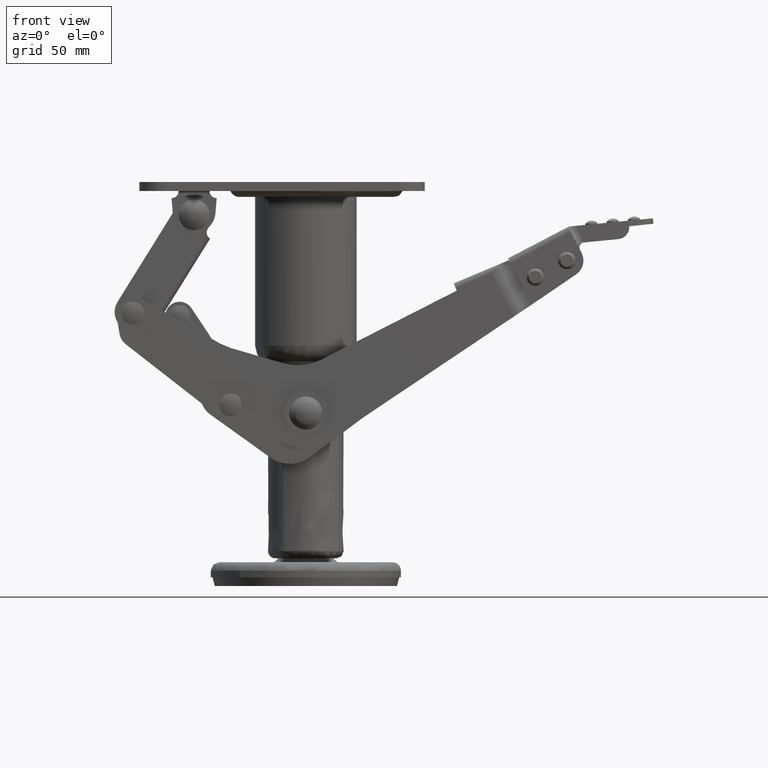
[diagram: clean part render]
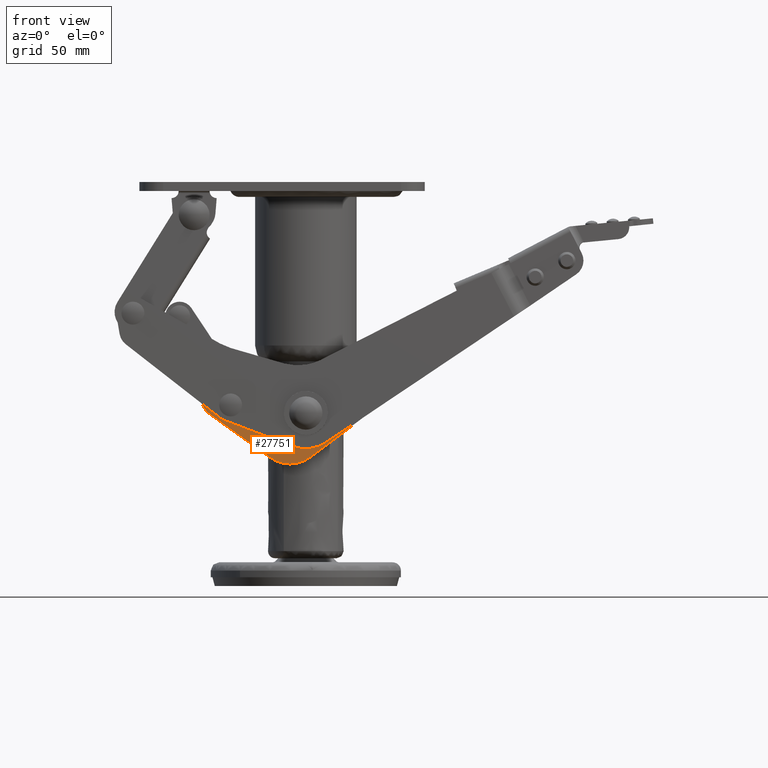
[diagram: same view with one face highlighted and labeled with its STEP entity id]
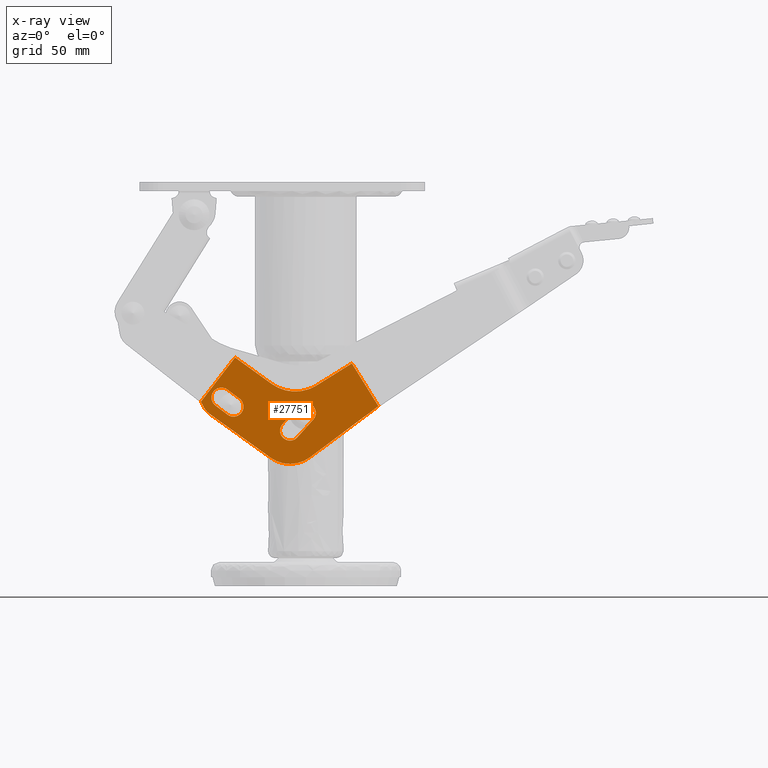
[diagram: x-ray of the same camera — body ghosted, the highlighted face saturated]
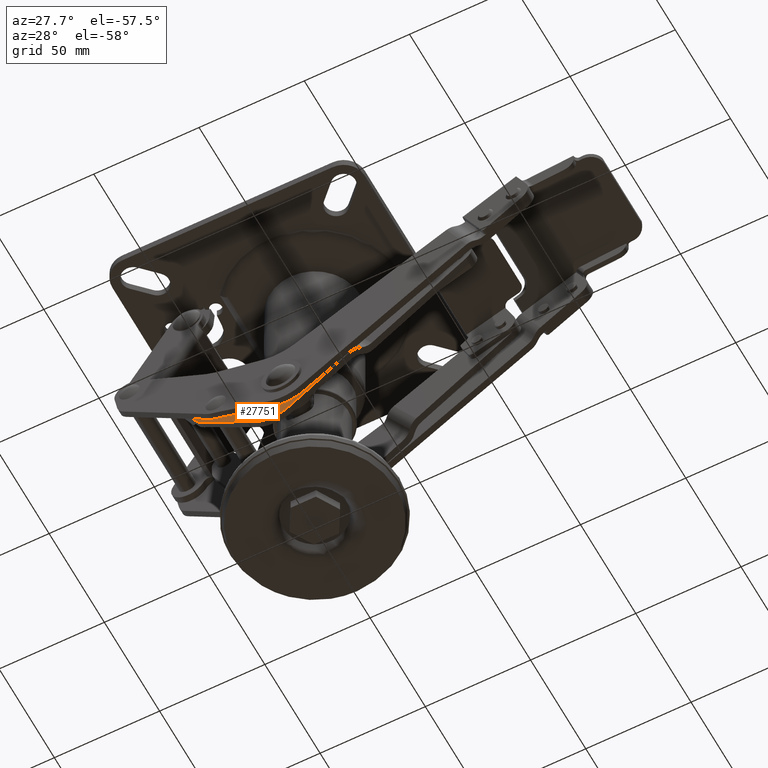
[diagram: same view with one face highlighted and labeled with its STEP entity id]
A machine part, front view. The second image highlights one B-rep face of the part: STEP entity #27751.
The next image is the same camera in x-ray: the body ghosted, the highlighted face saturated — about 0% of this face is hidden behind the body in this view.
A second angle (auxiliary view) of the same face is appended — the face is thin or edge-on in the first view.
In plain terms, the highlighted face is a freeform B-spline surface patch.
Its self-contained STEP definition (entity closure, byte-faithful):
#27105=CARTESIAN_POINT('',(-17.131837931761950,-26.125000000000000,-59.725601300948497));
#27106=VERTEX_POINT('',#27105);
#27132=CARTESIAN_POINT('',(-31.661843170997450,-26.125000000000000,-78.201137062520303));
#27133=VERTEX_POINT('',#27132);
#27147=CARTESIAN_POINT('',(-17.131837931761950,-26.125000000000000,-59.725601300948497));
#27148=CARTESIAN_POINT('',(-31.661843170997450,-26.125000000000000,-78.201137062520303));
#27149=QUASI_UNIFORM_CURVE('',1,(#27147,#27148),.UNSPECIFIED.,.F.,.U.);
#27150=EDGE_CURVE('',#27106,#27133,#27149,.T.);
#27169=CARTESIAN_POINT('',(42.972276981132353,-26.125000000000000,-80.691094217082281));
#27170=VERTEX_POINT('',#27169);
#27181=CARTESIAN_POINT('',(31.978884690049899,-26.125000000000000,-62.657805762113213));
#27182=VERTEX_POINT('',#27181);
#27192=CARTESIAN_POINT('',(42.972276981132353,-26.125000000000000,-80.691094217082281));
#27193=CARTESIAN_POINT('',(31.978884690049899,-26.125000000000000,-62.657805762113213));
#27194=QUASI_UNIFORM_CURVE('',1,(#27192,#27193),.UNSPECIFIED.,.F.,.U.);
#27195=EDGE_CURVE('',#27170,#27182,#27194,.T.);
#27528=CARTESIAN_POINT('',(-35.389816627329211,-26.125000000000000,-106.946315765463890));
#27529=CARTESIAN_POINT('',(46.700253106588242,-26.125000000000000,-106.946315765463890));
#27530=CARTESIAN_POINT('',(-35.389816627329211,-26.125000000000000,-57.479136357955412));
#27531=CARTESIAN_POINT('',(46.700253106588242,-26.125000000000000,-57.479136357955412));
#27532=B_SPLINE_SURFACE_WITH_KNOTS('',1,1,((#27528,#27530),(#27529,#27531)),.UNSPECIFIED.,.F.,.F.,.U.,(2,2),(2,2),(0.0,82.090069733917446),(0.0,49.467179407508482),.UNSPECIFIED.);
#27533=CARTESIAN_POINT('',(-1.837779504895800,-26.125000000000000,-70.966638616200314));
#27534=VERTEX_POINT('',#27533);
#27535=CARTESIAN_POINT('',(-17.131837931761950,-26.125000000000000,-59.725601300948497));
#27536=CARTESIAN_POINT('',(-1.837779504895800,-26.125000000000000,-70.966638616200314));
#27537=QUASI_UNIFORM_CURVE('',1,(#27535,#27536),.UNSPECIFIED.,.F.,.U.);
#27538=EDGE_CURVE('',#27106,#27534,#27537,.T.);
#27539=ORIENTED_EDGE('',*,*,#27538,.F.);
#27540=ORIENTED_EDGE('',*,*,#27150,.T.);
#27541=CARTESIAN_POINT('',(-30.646449673511398,-26.125000000000000,-80.270869471656198));
#27542=VERTEX_POINT('',#27541);
#27543=CARTESIAN_POINT('',(-30.646449673511398,-26.125000000000000,-80.270869471656198));
#27544=CARTESIAN_POINT('',(-31.661843170997450,-26.125000000000000,-78.201137062520303));
#27545=QUASI_UNIFORM_CURVE('',1,(#27543,#27544),.UNSPECIFIED.,.F.,.U.);
#27546=EDGE_CURVE('',#27542,#27133,#27545,.T.);
#27547=ORIENTED_EDGE('',*,*,#27546,.F.);
#27548=CARTESIAN_POINT('',(-28.075046624398851,-26.125000000000000,-83.357114485426692));
#27549=VERTEX_POINT('',#27548);
#27550=CARTESIAN_POINT('',(-30.646449673511398,-26.125000000000000,-80.270869471656198));
#27551=CARTESIAN_POINT('',(-30.404609015781020,-26.125000000000039,-80.763927655130971));
#27552=CARTESIAN_POINT('',(-29.691193203034320,-26.124999999999940,-81.919664328906151));
#27553=CARTESIAN_POINT('',(-28.720223187964109,-26.125000000000082,-82.879573292074269));
#27554=CARTESIAN_POINT('',(-28.075046624398851,-26.125000000000000,-83.357114485426692));
#27555=B_SPLINE_CURVE_WITH_KNOTS('',3,(#27550,#27551,#27552,#27553,#27554),.UNSPECIFIED.,.F.,.U.,(4,1,4),(0.000000031058227,1.647544864392386,4.055484757206007),.UNSPECIFIED.);
#27556=EDGE_CURVE('',#27542,#27549,#27555,.T.);
#27557=ORIENTED_EDGE('',*,*,#27556,.T.);
#27558=CARTESIAN_POINT('',(-2.619445165892785,-26.125000000000000,-101.959959902777000));
#27559=VERTEX_POINT('',#27558);
#27560=CARTESIAN_POINT('',(-2.619445165892785,-26.125000000000000,-101.959959902777000));
#27561=CARTESIAN_POINT('',(-28.075046624398851,-26.125000000000000,-83.357114485426692));
#27562=QUASI_UNIFORM_CURVE('',1,(#27560,#27561),.UNSPECIFIED.,.F.,.U.);
#27563=EDGE_CURVE('',#27559,#27549,#27562,.T.);
#27564=ORIENTED_EDGE('',*,*,#27563,.F.);
#27565=CARTESIAN_POINT('',(14.002305778765701,-26.125000000000000,-101.972603225723800));
#27566=VERTEX_POINT('',#27565);
#27567=CARTESIAN_POINT('',(-2.619445165892785,-26.125000000000000,-101.959959902777000));
#27568=CARTESIAN_POINT('',(-1.725037934273733,-26.124999999999972,-102.621170150175800));
#27569=CARTESIAN_POINT('',(-0.304896219967834,-26.125000000000021,-103.428359290018190));
#27570=CARTESIAN_POINT('',(2.055090896325234,-26.125000000000028,-104.272158285173900));
#27571=CARTESIAN_POINT('',(4.567100449679437,-26.125000000000060,-104.767025264998100));
#27572=CARTESIAN_POINT('',(7.461706745471384,-26.125000000000011,-104.697340131048800));
#27573=CARTESIAN_POINT('',(10.808187263874521,-26.125000000000121,-103.886804609432200));
#27574=CARTESIAN_POINT('',(12.845917547314130,-26.124999999999869,-102.825296387418110));
#27575=CARTESIAN_POINT('',(14.002305778765701,-26.125000000000000,-101.972603225723800));
#27576=B_SPLINE_CURVE_WITH_KNOTS('',3,(#27567,#27568,#27569,#27570,#27571,#27572,#27573,#27574,#27575),.UNSPECIFIED.,.F.,.U.,(4,1,1,1,1,1,4),(0.000000152516137,3.336735384362889,4.866089369556548,7.507677963669355,10.983436840971651,13.486001231840490,17.795957453342218),.UNSPECIFIED.);
#27577=EDGE_CURVE('',#27559,#27566,#27576,.T.);
#27578=ORIENTED_EDGE('',*,*,#27577,.T.);
#27579=CARTESIAN_POINT('',(42.972276981132353,-26.125000000000000,-80.691094217082281));
#27580=CARTESIAN_POINT('',(14.002305778765701,-26.125000000000000,-101.972603225723800));
#27581=QUASI_UNIFORM_CURVE('',1,(#27579,#27580),.UNSPECIFIED.,.F.,.U.);
#27582=EDGE_CURVE('',#27170,#27566,#27581,.T.);
#27583=ORIENTED_EDGE('',*,*,#27582,.F.);
#27584=ORIENTED_EDGE('',*,*,#27195,.T.);
#27585=CARTESIAN_POINT('',(17.131699892813650,-26.125000000000000,-71.722971272339109));
#27586=VERTEX_POINT('',#27585);
#27587=CARTESIAN_POINT('',(17.131699892813650,-26.125000000000000,-71.722971272339109));
#27588=CARTESIAN_POINT('',(31.978884690049899,-26.125000000000000,-62.657805762113213));
#27589=QUASI_UNIFORM_CURVE('',1,(#27587,#27588),.UNSPECIFIED.,.F.,.U.);
#27590=EDGE_CURVE('',#27586,#27182,#27589,.T.);
#27591=ORIENTED_EDGE('',*,*,#27590,.F.);
#27592=CARTESIAN_POINT('',(-1.837779504895800,-26.125000000000000,-70.966638616200314));
#27593=CARTESIAN_POINT('',(-0.399569771496646,-26.124999999999989,-72.021461248155063));
#27594=CARTESIAN_POINT('',(2.245855174969840,-26.125000000000050,-73.379711201721108));
#27595=CARTESIAN_POINT('',(6.469274067610147,-26.124999999999869,-74.305187694865538));
#27596=CARTESIAN_POINT('',(10.220470315837749,-26.125000000000291,-74.281186999215009));
#27597=CARTESIAN_POINT('',(13.915692396493190,-26.124999999999620,-73.403068446776544));
#27598=CARTESIAN_POINT('',(16.104896242395121,-26.125000000000391,-72.356366105237015));
#27599=CARTESIAN_POINT('',(17.131699892813650,-26.125000000000000,-71.722971272339109));
#27600=B_SPLINE_CURVE_WITH_KNOTS('',3,(#27592,#27593,#27594,#27595,#27596,#27597,#27598,#27599),.UNSPECIFIED.,.F.,.U.,(4,1,1,1,1,4),(0.000000122651972,5.350305086791428,8.812268707300834,12.903662442320680,16.522989749895618,20.142306307615069),.UNSPECIFIED.);
#27601=EDGE_CURVE('',#27534,#27586,#27600,.T.);
#27602=ORIENTED_EDGE('',*,*,#27601,.F.);
#27603=EDGE_LOOP('',(#27539,#27540,#27547,#27557,#27564,#27578,#27583,#27584,#27591,#27602));
#27604=FACE_OUTER_BOUND('',#27603,.T.);
#27605=CARTESIAN_POINT('',(8.585453824577691,-26.125000000000000,-93.751904258547896));
#27606=VERTEX_POINT('',#27605);
#27607=CARTESIAN_POINT('',(15.741047316271899,-26.125000000000000,-85.895199520258515));
#27608=VERTEX_POINT('',#27607);
#27609=CARTESIAN_POINT('',(8.585453824577691,-26.125000000000000,-93.751904258547896));
#27610=CARTESIAN_POINT('',(11.161916594990361,-26.125000000000050,-91.316115827754402));
#27611=CARTESIAN_POINT('',(13.556012683849961,-26.124999999999929,-88.687485730103518));
#27612=CARTESIAN_POINT('',(15.741047316271899,-26.125000000000000,-85.895199520258515));
#27613=B_SPLINE_CURVE_WITH_KNOTS('',3,(#27609,#27610,#27611,#27612),.UNSPECIFIED.,.F.,.U.,(4,4),(1.001556E-009,10.636766463873560),.UNSPECIFIED.);
#27614=EDGE_CURVE('',#27606,#27608,#27613,.T.);
#27615=ORIENTED_EDGE('',*,*,#27614,.F.);
#27616=CARTESIAN_POINT('',(2.648095937510592,-26.125000000000000,-93.585454378063474));
#27617=VERTEX_POINT('',#27616);
#27618=CARTESIAN_POINT('',(2.648095937510592,-26.125000000000000,-93.585454378063474));
#27619=CARTESIAN_POINT('',(2.884113145931747,-26.124999999999979,-93.835181361459917));
#27620=CARTESIAN_POINT('',(3.444546526350676,-26.125000000000039,-94.298360444772172));
#27621=CARTESIAN_POINT('',(4.357333767939385,-26.124999999999979,-94.720259328599724));
#27622=CARTESIAN_POINT('',(5.372557705792083,-26.125000000000060,-94.925878748786900));
#27623=CARTESIAN_POINT('',(6.342899723596227,-26.124999999999851,-94.893559919668178));
#27624=CARTESIAN_POINT('',(7.506209690352276,-26.125000000000089,-94.560554101430796));
#27625=CARTESIAN_POINT('',(8.211194687390869,-26.124999999999901,-94.106410277827379));
#27626=CARTESIAN_POINT('',(8.585453824577691,-26.125000000000000,-93.751904258547896));
#27627=B_SPLINE_CURVE_WITH_KNOTS('',3,(#27618,#27619,#27620,#27621,#27622,#27623,#27624,#27625,#27626),.UNSPECIFIED.,.F.,.U.,(4,1,1,1,1,1,4),(0.000000365194075,1.030854940881170,2.164812603310683,2.989568905935572,4.123392515231099,5.051217076369917,6.597504022028091),.UNSPECIFIED.);
#27628=EDGE_CURVE('',#27617,#27606,#27627,.T.);
#27629=ORIENTED_EDGE('',*,*,#27628,.F.);
#27630=CARTESIAN_POINT('',(2.814545763196355,-26.125000000000000,-87.648090466320511));
#27631=VERTEX_POINT('',#27630);
#27632=CARTESIAN_POINT('',(2.814545763196355,-26.125000000000000,-87.648090466320511));
#27633=CARTESIAN_POINT('',(2.439668392063320,-26.124999999999950,-88.001922504151352));
#27634=CARTESIAN_POINT('',(1.946627165732229,-26.125000000000028,-88.680311565442096));
#27635=CARTESIAN_POINT('',(1.571869758573848,-26.125000000000011,-89.757882222993302));
#27636=CARTESIAN_POINT('',(1.453836263819102,-26.124999999999989,-90.788299288318683));
#27637=CARTESIAN_POINT('',(1.598136934398657,-26.125000000000089,-91.785178618382716));
#27638=CARTESIAN_POINT('',(2.004444831518788,-26.124999999999950,-92.775464083509945));
#27639=CARTESIAN_POINT('',(2.388323481223274,-26.124999999999901,-93.310881724805142));
#27640=CARTESIAN_POINT('',(2.648095937510592,-26.125000000000000,-93.585454378063474));
#27641=B_SPLINE_CURVE_WITH_KNOTS('',3,(#27632,#27633,#27634,#27635,#27636,#27637,#27638,#27639,#27640),.UNSPECIFIED.,.F.,.U.,(4,1,1,1,1,1,4),(0.000000359355626,1.546290904034417,2.474112093191188,3.401791797001450,4.638855330463147,5.463564452733367,6.597508821151231),.UNSPECIFIED.);
#27642=EDGE_CURVE('',#27631,#27617,#27641,.T.);
#27643=ORIENTED_EDGE('',*,*,#27642,.F.);
#27644=CARTESIAN_POINT('',(9.125932614071470,-26.125000000000000,-80.718306255292106));
#27645=VERTEX_POINT('',#27644);
#27646=CARTESIAN_POINT('',(2.814545763196355,-26.125000000000000,-87.648090466320511));
#27647=CARTESIAN_POINT('',(5.087034131098766,-26.124999999999879,-85.499666223906402));
#27648=CARTESIAN_POINT('',(7.198691167129041,-26.125000000000249,-83.181167908660044));
#27649=CARTESIAN_POINT('',(9.125932614071470,-26.125000000000000,-80.718306255292106));
#27650=B_SPLINE_CURVE_WITH_KNOTS('',3,(#27646,#27647,#27648,#27649),.UNSPECIFIED.,.F.,.U.,(4,4),(8.810819E-010,9.381857654421843),.UNSPECIFIED.);
#27651=EDGE_CURVE('',#27631,#27645,#27650,.T.);
#27652=ORIENTED_EDGE('',*,*,#27651,.T.);
#27653=CARTESIAN_POINT('',(15.021940403985351,-26.125000000000000,-79.999190723764684));
#27654=VERTEX_POINT('',#27653);
#27655=CARTESIAN_POINT('',(15.021940403985351,-26.125000000000000,-79.999190723764684));
#27656=CARTESIAN_POINT('',(14.616251126366350,-26.125000000000028,-79.681158801932995));
#27657=CARTESIAN_POINT('',(13.872038695969540,-26.124999999999961,-79.294555445262290));
#27658=CARTESIAN_POINT('',(12.818612542653620,-26.125000000000028,-79.097131572063049));
#27659=CARTESIAN_POINT('',(11.956478024754860,-26.125000000000011,-79.106552953357181));
#27660=CARTESIAN_POINT('',(11.110706876643130,-26.125000000000011,-79.284359754508287));
#27661=CARTESIAN_POINT('',(10.072792006456950,-26.125000000000071,-79.757993003204518));
#27662=CARTESIAN_POINT('',(9.443259936753726,-26.125000000000011,-80.312054751558833));
#27663=CARTESIAN_POINT('',(9.125932614071470,-26.125000000000000,-80.718306255292106));
#27664=B_SPLINE_CURVE_WITH_KNOTS('',3,(#27655,#27656,#27657,#27658,#27659,#27660,#27661,#27662,#27663),.UNSPECIFIED.,.F.,.U.,(4,1,1,1,1,1,4),(0.000000357944542,1.546291655400708,2.474113295714363,3.195716913673510,4.123397522998621,5.051223210656191,6.597512031574943),.UNSPECIFIED.);
#27665=EDGE_CURVE('',#27654,#27645,#27664,.T.);
#27666=ORIENTED_EDGE('',*,*,#27665,.F.);
#27667=CARTESIAN_POINT('',(15.741047316271899,-26.125000000000000,-85.895199520258515));
#27668=CARTESIAN_POINT('',(16.101787972186749,-26.124999999999972,-85.435561859564430));
#27669=CARTESIAN_POINT('',(16.502062877947669,-26.125000000000011,-84.615212381101671));
#27670=CARTESIAN_POINT('',(16.656911550813639,-26.124999999999961,-83.484901969158045));
#27671=CARTESIAN_POINT('',(16.599149323443001,-26.125000000000028,-82.520939704851131));
#27672=CARTESIAN_POINT('',(16.328150971903931,-26.124999999999989,-81.623147959664792));
#27673=CARTESIAN_POINT('',(15.778980689665540,-26.125000000000021,-80.704358293333584));
#27674=CARTESIAN_POINT('',(15.319685441854940,-26.124999999999961,-80.232041640398251));
#27675=CARTESIAN_POINT('',(15.021940403985351,-26.125000000000000,-79.999190723764684));
#27676=B_SPLINE_CURVE_WITH_KNOTS('',3,(#27667,#27668,#27669,#27670,#27671,#27672,#27673,#27674,#27675),.UNSPECIFIED.,.F.,.U.,(4,1,1,1,1,1,4),(0.000000357986180,1.752469371229332,2.680246206519191,3.401793432202648,4.638857563413573,5.463567081092254,6.597511996228798),.UNSPECIFIED.);
#27677=EDGE_CURVE('',#27608,#27654,#27676,.T.);
#27678=ORIENTED_EDGE('',*,*,#27677,.F.);
#27679=EDGE_LOOP('',(#27615,#27629,#27643,#27652,#27666,#27678));
#27680=FACE_BOUND('',#27679,.T.);
#27681=CARTESIAN_POINT('',(-15.410599355027150,-26.125000000000000,-77.073036297810802));
#27682=VERTEX_POINT('',#27681);
#27683=CARTESIAN_POINT('',(-20.448295711919950,-26.125000000000000,-73.202882471215204));
#27684=VERTEX_POINT('',#27683);
#27685=CARTESIAN_POINT('',(-15.410599355027150,-26.125000000000000,-77.073036297810802));
#27686=CARTESIAN_POINT('',(-20.448295711919950,-26.125000000000000,-73.202882471215204));
#27687=QUASI_UNIFORM_CURVE('',1,(#27685,#27686),.UNSPECIFIED.,.F.,.U.);
#27688=EDGE_CURVE('',#27682,#27684,#27687,.T.);
#27689=ORIENTED_EDGE('',*,*,#27688,.F.);
#27690=CARTESIAN_POINT('',(-14.638685442869550,-26.125000000000000,-82.962381636445699));
#27691=VERTEX_POINT('',#27690);
#27692=CARTESIAN_POINT('',(-14.638685442869550,-26.125000000000000,-82.962381636445699));
#27693=CARTESIAN_POINT('',(-14.324348487912861,-26.125000000000011,-82.553846339574676));
#27694=CARTESIAN_POINT('',(-13.864967244225859,-26.124999999999972,-81.650469950714367));
#27695=CARTESIAN_POINT('',(-13.712849588623710,-26.125000000000000,-80.334190627863180));
#27696=CARTESIAN_POINT('',(-13.919931629084880,-26.125000000000050,-79.106830424010994));
#27697=CARTESIAN_POINT('',(-14.435608704879410,-26.124999999999911,-78.003442718680660));
#27698=CARTESIAN_POINT('',(-15.056221458123790,-26.125000000000000,-77.345005480048513));
#27699=CARTESIAN_POINT('',(-15.410599355027150,-26.125000000000000,-77.073036297810802));
#27700=B_SPLINE_CURVE_WITH_KNOTS('',3,(#27692,#27693,#27694,#27695,#27696,#27697,#27698,#27699),.UNSPECIFIED.,.F.,.U.,(4,1,1,1,1,4),(0.000000355840101,1.546295977531725,2.989580886942381,3.917269333180921,5.257425357485765,6.597530479520268),.UNSPECIFIED.);
#27701=EDGE_CURVE('',#27691,#27682,#27700,.T.);
#27702=ORIENTED_EDGE('',*,*,#27701,.F.);
#27703=CARTESIAN_POINT('',(-20.528032430777451,-26.125000000000000,-83.734282624094007));
#27704=VERTEX_POINT('',#27703);
#27705=CARTESIAN_POINT('',(-20.528032430777451,-26.125000000000000,-83.734282624094007));
#27706=CARTESIAN_POINT('',(-20.201143941964251,-26.125000000000028,-83.985617877527062));
#27707=CARTESIAN_POINT('',(-19.472563456461831,-26.125000000000000,-84.390795998541236));
#27708=CARTESIAN_POINT('',(-18.352321494011580,-26.124999999999989,-84.633505434180805));
#27709=CARTESIAN_POINT('',(-17.385261769091120,-26.125000000000060,-84.590325449289764));
#27710=CARTESIAN_POINT('',(-16.547942460129729,-26.124999999999950,-84.384736125359424));
#27711=CARTESIAN_POINT('',(-15.576895006638150,-26.125000000000110,-83.931180149408462));
#27712=CARTESIAN_POINT('',(-14.952366876064580,-26.124999999999709,-83.371447483921983));
#27713=CARTESIAN_POINT('',(-14.638685442869550,-26.125000000000000,-82.962381636445699));
#27714=B_SPLINE_CURVE_WITH_KNOTS('',3,(#27705,#27706,#27707,#27708,#27709,#27710,#27711,#27712,#27713),.UNSPECIFIED.,.F.,.U.,(4,1,1,1,1,1,4),(0.000000355883065,1.237016366391299,2.474120198514460,3.401802941337322,4.123409031271050,5.051237308373840,6.597530444174654),.UNSPECIFIED.);
#27715=EDGE_CURVE('',#27704,#27691,#27714,.T.);
#27716=ORIENTED_EDGE('',*,*,#27715,.F.);
#27717=CARTESIAN_POINT('',(-25.574041573235601,-26.125000000000000,-79.857721081440801));
#27718=VERTEX_POINT('',#27717);
#27719=CARTESIAN_POINT('',(-25.574041573235601,-26.125000000000000,-79.857721081440801));
#27720=CARTESIAN_POINT('',(-20.528032430777451,-26.125000000000000,-83.734282624094007));
#27721=QUASI_UNIFORM_CURVE('',1,(#27719,#27720),.UNSPECIFIED.,.F.,.U.);
#27722=EDGE_CURVE('',#27718,#27704,#27721,.T.);
#27723=ORIENTED_EDGE('',*,*,#27722,.F.);
#27724=CARTESIAN_POINT('',(-26.342740877388611,-26.125000000000000,-73.964230101345990));
#27725=VERTEX_POINT('',#27724);
#27726=CARTESIAN_POINT('',(-26.342740877388611,-26.125000000000000,-73.964230101345990));
#27727=CARTESIAN_POINT('',(-26.594711266520751,-26.125000000000011,-74.291049392622668));
#27728=CARTESIAN_POINT('',(-26.950106551160630,-26.124999999999950,-74.928704556901323));
#27729=CARTESIAN_POINT('',(-27.233867580774799,-26.125000000000050,-76.034677638302554));
#27730=CARTESIAN_POINT('',(-27.227153851730989,-26.124999999999979,-77.007978355508996));
#27731=CARTESIAN_POINT('',(-26.997071101960181,-26.125000000000000,-77.946669877122957));
#27732=CARTESIAN_POINT('',(-26.543532057713559,-26.125000000000011,-78.918665718704702));
#27733=CARTESIAN_POINT('',(-25.983430144694399,-26.124999999999972,-79.543792429229995));
#27734=CARTESIAN_POINT('',(-25.574041573235601,-26.125000000000000,-79.857721081440801));
#27735=B_SPLINE_CURVE_WITH_KNOTS('',3,(#27726,#27727,#27728,#27729,#27730,#27731,#27732,#27733,#27734),.UNSPECIFIED.,.F.,.U.,(4,1,1,1,1,1,4),(0.000000363554366,1.237997116509261,2.166537683698047,3.404500023822940,4.126678226207183,5.055242218481627,6.602761339121567),.UNSPECIFIED.);
#27736=EDGE_CURVE('',#27725,#27718,#27735,.T.);
#27737=ORIENTED_EDGE('',*,*,#27736,.F.);
#27738=CARTESIAN_POINT('',(-20.448295711919950,-26.125000000000000,-73.202882471215204));
#27739=CARTESIAN_POINT('',(-20.856367228570861,-26.125000000000011,-72.887271674430238));
#27740=CARTESIAN_POINT('',(-21.759393600517640,-26.124999999999989,-72.425415326031114));
#27741=CARTESIAN_POINT('',(-23.076462916077610,-26.124999999999989,-72.270350151288937));
#27742=CARTESIAN_POINT('',(-24.236821905178470,-26.125000000000011,-72.464208818390404));
#27743=CARTESIAN_POINT('',(-25.350365159361971,-26.125000000000050,-72.949224362923545));
#27744=CARTESIAN_POINT('',(-26.028290727282560,-26.124999999999989,-73.555266031262036));
#27745=CARTESIAN_POINT('',(-26.342740877388611,-26.125000000000000,-73.964230101345990));
#27746=B_SPLINE_CURVE_WITH_KNOTS('',3,(#27738,#27739,#27740,#27741,#27742,#27743,#27744,#27745),.UNSPECIFIED.,.F.,.U.,(4,1,1,1,1,4),(0.000000363545345,1.547521949598572,2.991951274531735,3.920375115843998,5.055242170166418,6.602761276016738),.UNSPECIFIED.);
#27747=EDGE_CURVE('',#27684,#27725,#27746,.T.);
#27748=ORIENTED_EDGE('',*,*,#27747,.F.);
#27749=EDGE_LOOP('',(#27689,#27702,#27716,#27723,#27737,#27748));
#27750=FACE_BOUND('',#27749,.T.);
#27751=ADVANCED_FACE('',(#27604,#27680,#27750),#27532,.T.);